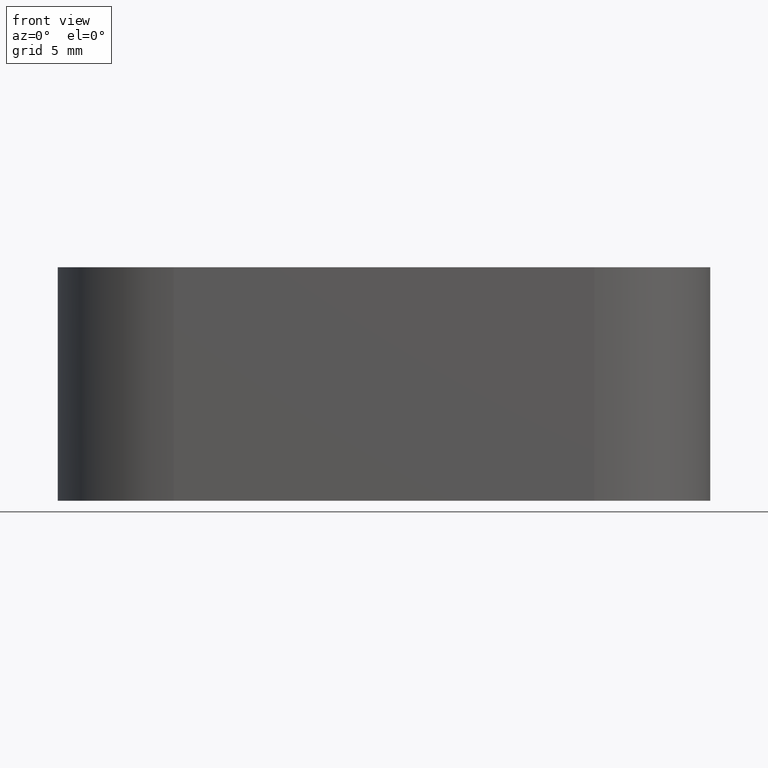
[diagram: clean part render]
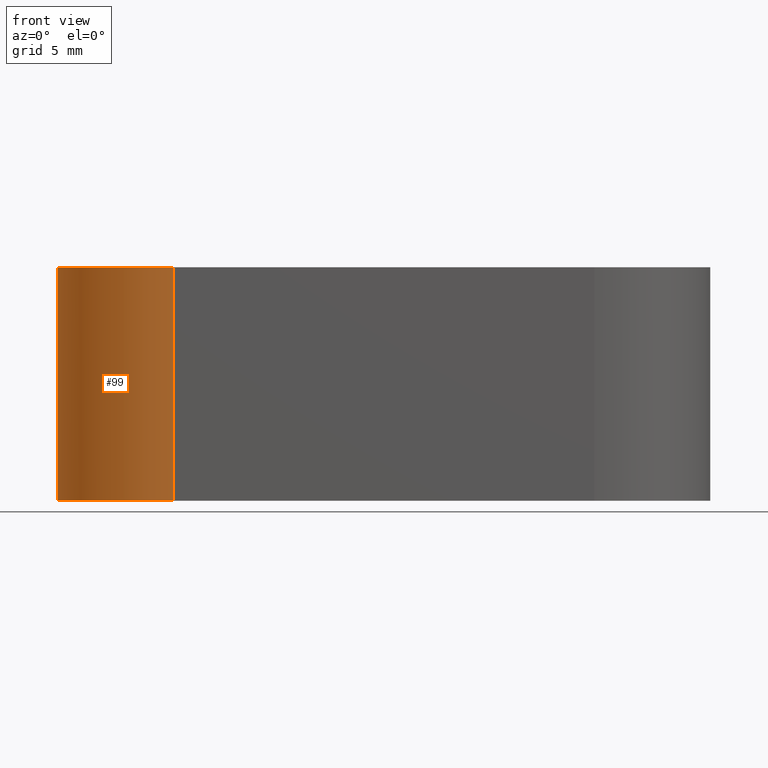
[diagram: same view with one face highlighted and labeled with its STEP entity id]
A machine part, front view. The second image highlights one B-rep face of the part: STEP entity #99.
In plain terms, the highlighted cylindrical surface (partial cylindrical patch) has radius 5 mm, axis along (0, 0, 1).
Its self-contained STEP definition (entity closure, byte-faithful):
#14=CYLINDRICAL_SURFACE('',#127,5.);
#17=FACE_OUTER_BOUND('',#23,.T.);
#23=EDGE_LOOP('',(#72,#73,#74,#75));
#30=LINE('',#178,#38);
#31=LINE('',#179,#39);
#38=VECTOR('',#148,10.);
#39=VECTOR('',#149,10.);
#45=CIRCLE('',#126,5.);
#46=CIRCLE('',#128,5.);
#50=VERTEX_POINT('',#169);
#51=VERTEX_POINT('',#171);
#52=VERTEX_POINT('',#175);
#53=VERTEX_POINT('',#176);
#58=EDGE_CURVE('',#51,#50,#45,.T.);
#60=EDGE_CURVE('',#52,#53,#46,.T.);
#61=EDGE_CURVE('',#51,#53,#30,.T.);
#62=EDGE_CURVE('',#52,#50,#31,.T.);
#72=ORIENTED_EDGE('',*,*,#60,.T.);
#73=ORIENTED_EDGE('',*,*,#61,.F.);
#74=ORIENTED_EDGE('',*,*,#58,.T.);
#75=ORIENTED_EDGE('',*,*,#62,.F.);
#99=ADVANCED_FACE('',(#17),#14,.T.);
#126=AXIS2_PLACEMENT_3D('',#172,#141,#142);
#127=AXIS2_PLACEMENT_3D('',#174,#144,#145);
#128=AXIS2_PLACEMENT_3D('',#177,#146,#147);
#141=DIRECTION('center_axis',(0.,0.,1.));
#142=DIRECTION('ref_axis',(-4.44089209850063E-16,1.,0.));
#144=DIRECTION('center_axis',(0.,0.,1.));
#145=DIRECTION('ref_axis',(-4.44089209850063E-16,1.,0.));
#146=DIRECTION('center_axis',(0.,0.,-1.));
#147=DIRECTION('ref_axis',(-4.44089209850063E-16,1.,0.));
#148=DIRECTION('',(0.,0.,1.));
#149=DIRECTION('',(0.,0.,-1.));
#169=CARTESIAN_POINT('',(-9.,-5.,-5.));
#171=CARTESIAN_POINT('',(-9.00000000000001,5.,-5.));
#172=CARTESIAN_POINT('Origin',(-9.,5.55111512312578E-16,-5.));
#174=CARTESIAN_POINT('Origin',(-9.,5.55111512312578E-16,0.));
#175=CARTESIAN_POINT('',(-9.,-5.,5.));
#176=CARTESIAN_POINT('',(-9.00000000000001,5.,5.));
#177=CARTESIAN_POINT('Origin',(-9.,5.55111512312578E-16,5.));
#178=CARTESIAN_POINT('',(-9.00000000000001,5.,0.));
#179=CARTESIAN_POINT('',(-9.,-5.,0.));